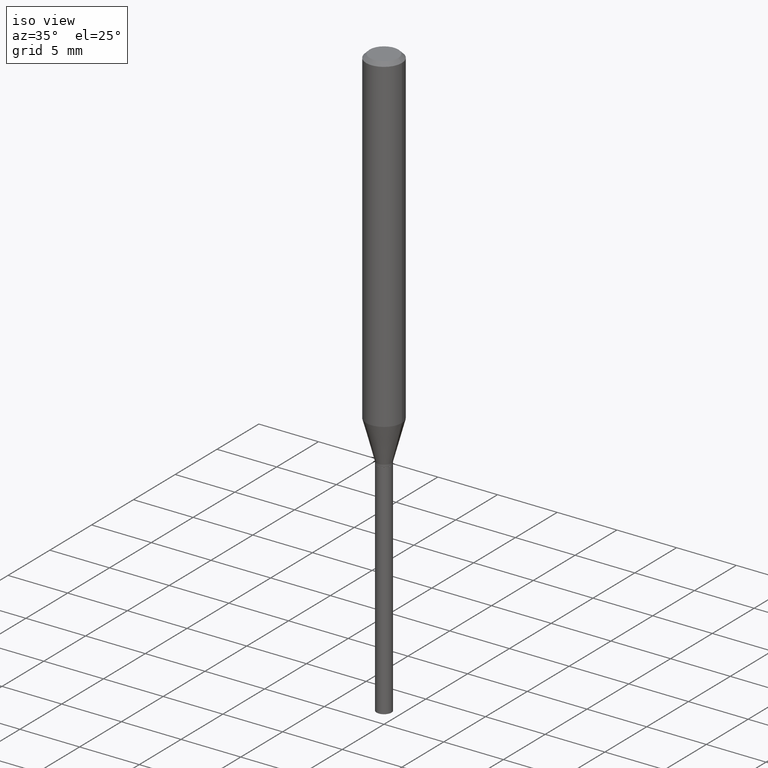
[diagram: clean part render]
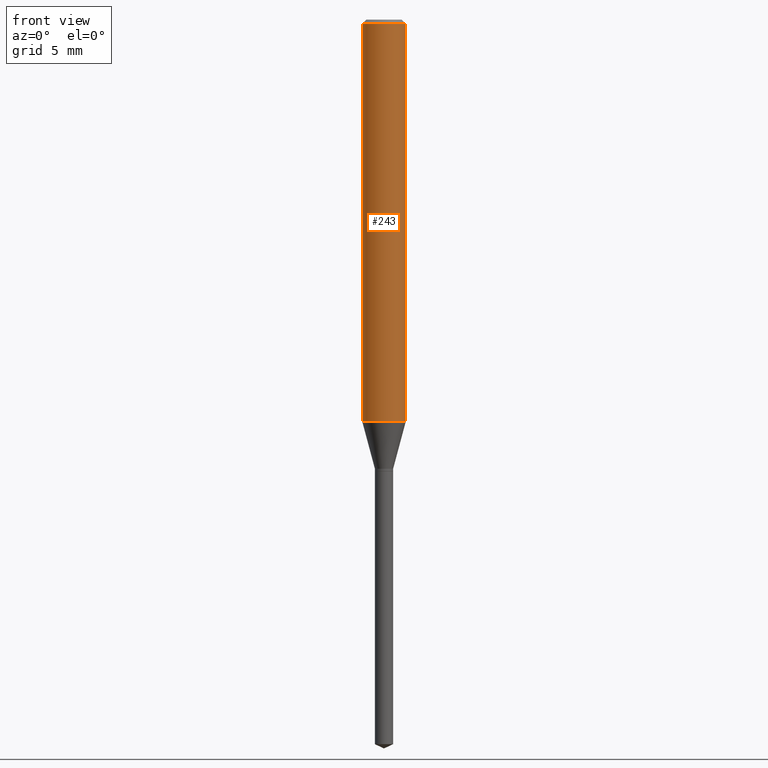
[diagram: tour spotlight — one face highlighted and labeled with its STEP entity id]
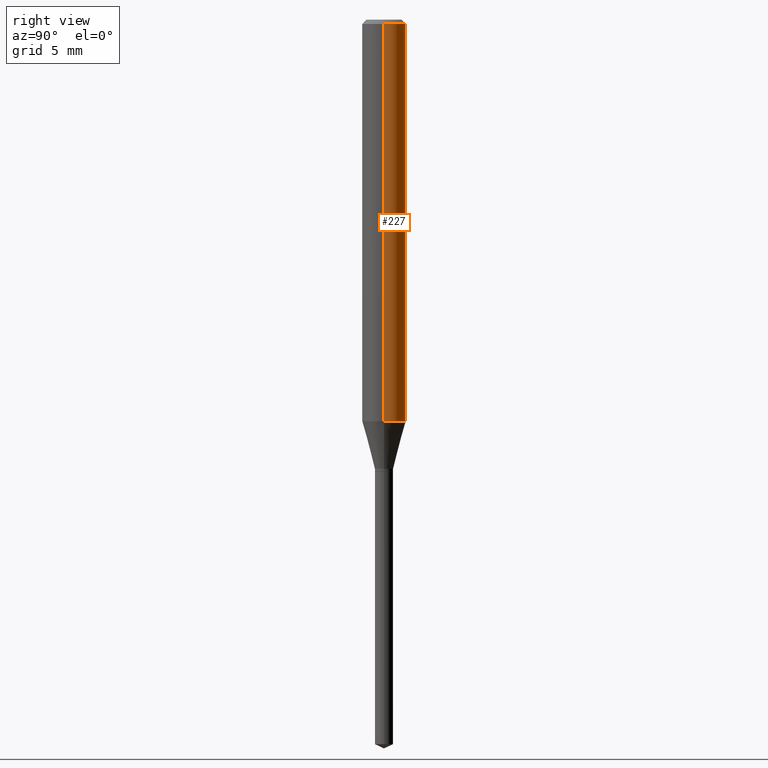
[diagram: tour spotlight — one face highlighted and labeled with its STEP entity id]
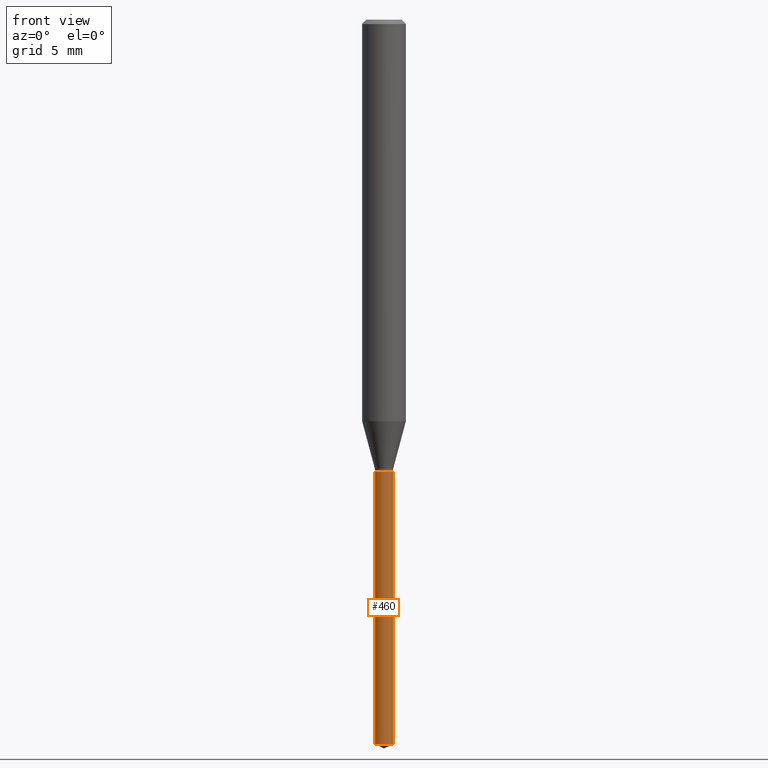
[diagram: tour spotlight — one face highlighted and labeled with its STEP entity id]
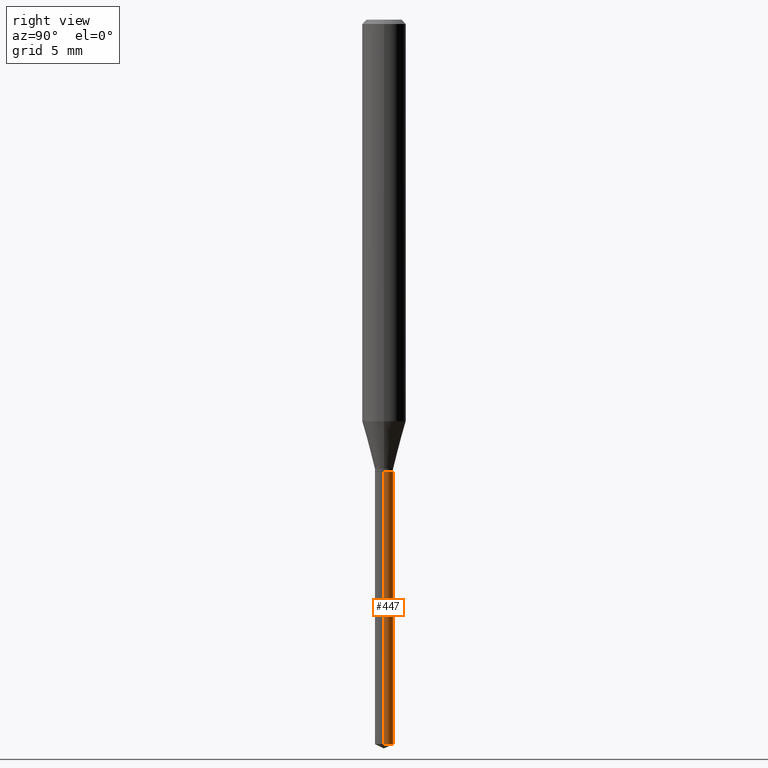
[diagram: tour spotlight — one face highlighted and labeled with its STEP entity id]
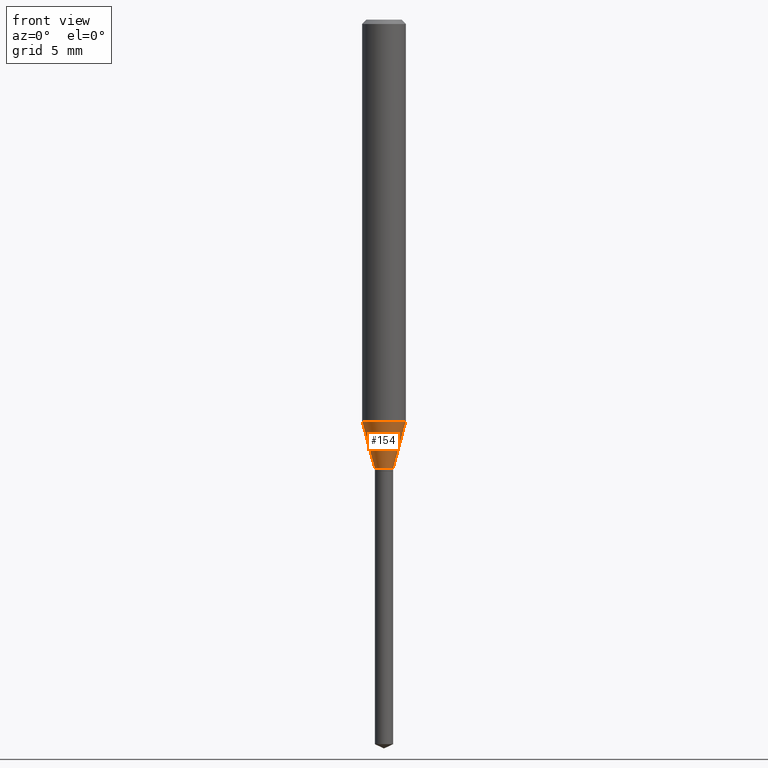
[diagram: tour spotlight — one face highlighted and labeled with its STEP entity id]
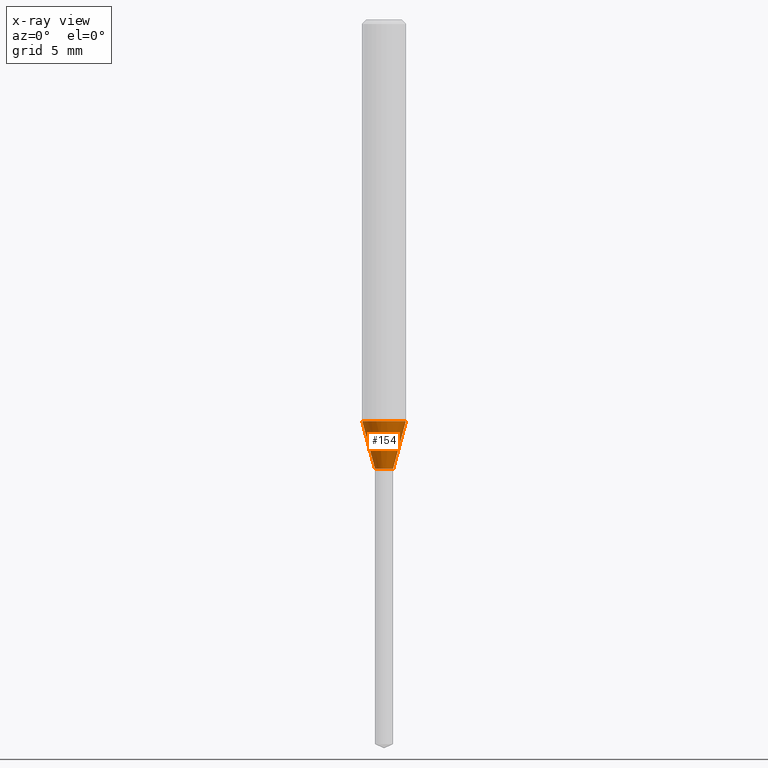
[diagram: x-ray of the same camera — body ghosted, this tour face saturated]
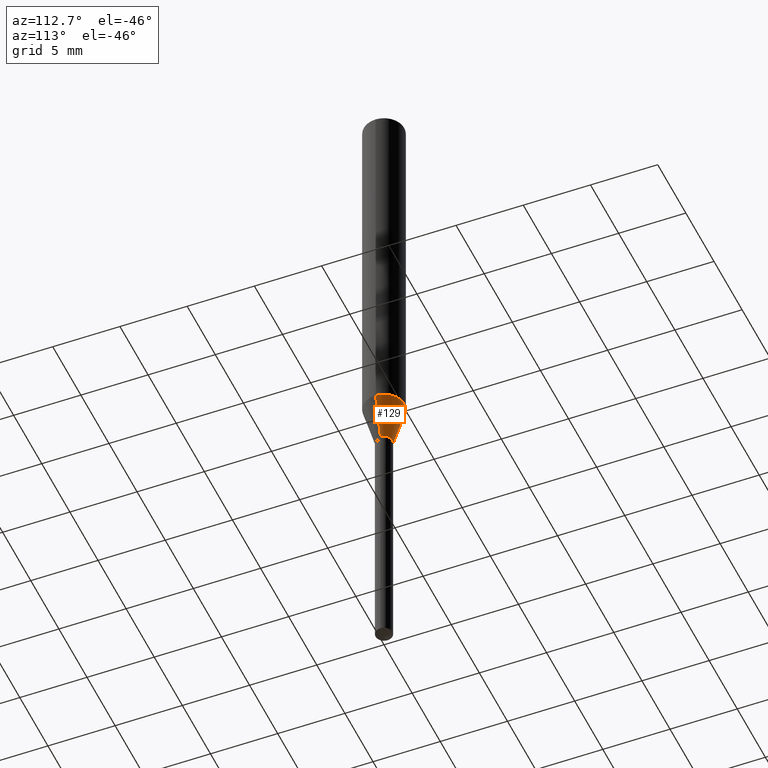
[diagram: tour spotlight — one face highlighted and labeled with its STEP entity id]
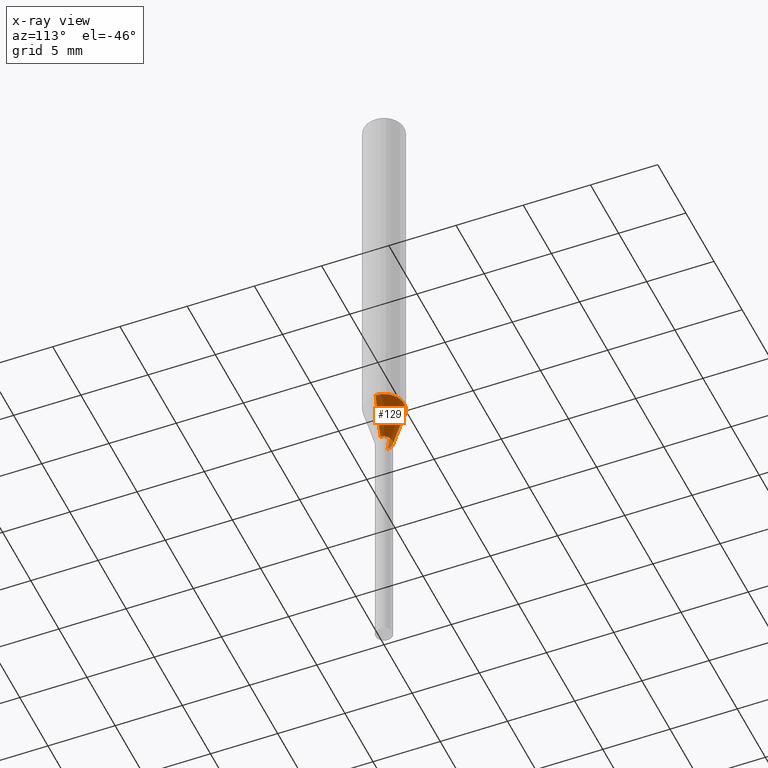
[diagram: x-ray of the same camera — body ghosted, this tour face saturated]
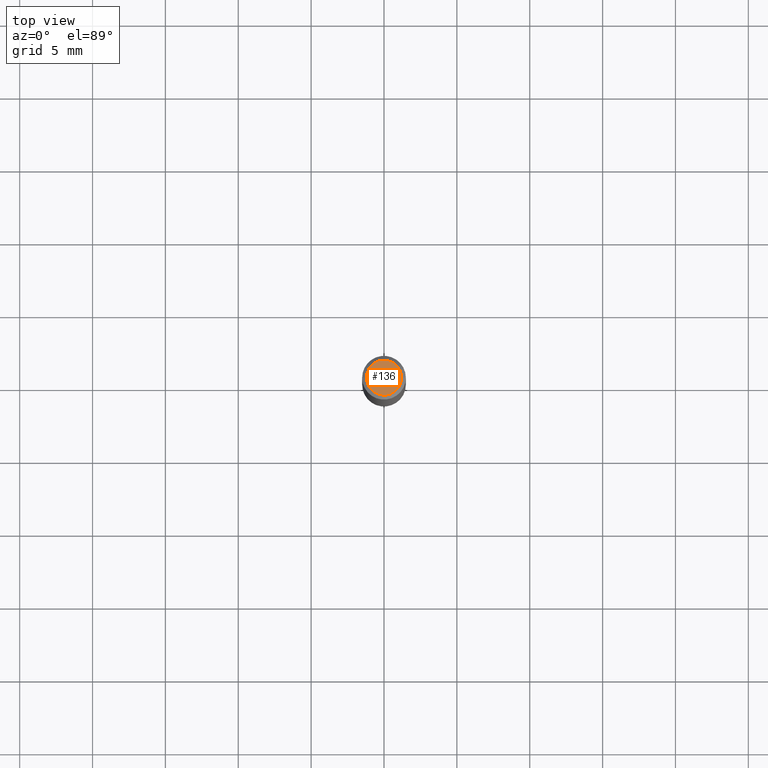
[diagram: tour spotlight — one face highlighted and labeled with its STEP entity id]
A machine part: a face-by-face anatomy tour. The part has 17 B-rep faces; the first image is the clean iso view, then the 7 largest visible faces are spotlighted one at a time (largest first), each with its STEP entity span.

Face 1 — front view, entity #243. In plain terms, the highlighted cylindrical surface (edge-blend (fillet) strip) has radius 1.4999 mm, axis along (-0, 0, 1).
Definition (entity closure, byte-faithful):
#22 = VECTOR ( 'NONE', #484, 39.37007874015748143 ) ;
#27 = CYLINDRICAL_SURFACE ( 'NONE', #352, 0.05905000000000006771 ) ;
#30 = CARTESIAN_POINT ( 'NONE',  ( 0.000000000000000000, 0.000000000000000000, 0.000000000000000000 ) ) ;
#50 = EDGE_CURVE ( 'NONE', #77, #133, #62, .T. ) ;
#57 = CARTESIAN_POINT ( 'NONE',  ( -0.05905000000000000526, -1.495224193701643913E-15, -0.01181000000000007738 ) ) ;
#60 = LINE ( 'NONE', #395, #437 ) ;
#62 = CIRCLE ( 'NONE', #457, 0.05905000000000013710 ) ;
#65 = EDGE_LOOP ( 'NONE', ( #296, #119, #446, #175 ) ) ;
#73 = VERTEX_POINT ( 'NONE', #423 ) ;
#76 = DIRECTION ( 'NONE',  ( -2.445468806185136597E-29, 3.491481338843145583E-15, 1.000000000000000000 ) ) ;
#77 = VERTEX_POINT ( 'NONE', #314 ) ;
#81 = EDGE_CURVE ( 'NONE', #77, #117, #60, .T. ) ;
#95 = DIRECTION ( 'NONE',  ( 1.000000000000000000, -6.982962677686264344E-15, 0.000000000000000000 ) ) ;
#117 = VERTEX_POINT ( 'NONE', #57 ) ;
#119 = ORIENTED_EDGE ( 'NONE', *, *, #50, .T. ) ;
#133 = VERTEX_POINT ( 'NONE', #461 ) ;
#175 = ORIENTED_EDGE ( 'NONE', *, *, #288, .F. ) ;
#194 = AXIS2_PLACEMENT_3D ( 'NONE', #262, #481, #264 ) ;
#201 = EDGE_CURVE ( 'NONE', #133, #73, #224, .T. ) ;
#214 = CARTESIAN_POINT ( 'NONE',  ( 2.653409096639165019E-29, -3.788364963724230266E-15, -1.085030849679252007 ) ) ;
#224 = LINE ( 'NONE', #413, #22 ) ;
#243 = ADVANCED_FACE ( 'NONE', ( #295 ), #27, .T. ) ;
#257 = DIRECTION ( 'NONE',  ( -2.445468806185136597E-29, 3.491481338843145583E-15, 1.000000000000000000 ) ) ;
#258 = CIRCLE ( 'NONE', #194, 0.05905000000000000526 ) ;
#262 = CARTESIAN_POINT ( 'NONE',  ( 2.888098660104665518E-31, -4.123439461173782112E-17, -0.01181000000000007738 ) ) ;
#264 = DIRECTION ( 'NONE',  ( 1.000000000000000000, -6.982962677686267499E-15, 0.000000000000000000 ) ) ;
#288 = EDGE_CURVE ( 'NONE', #117, #73, #258, .T. ) ;
#295 = FACE_OUTER_BOUND ( 'NONE', #65, .T. ) ;
#296 = ORIENTED_EDGE ( 'NONE', *, *, #81, .F. ) ;
#314 = CARTESIAN_POINT ( 'NONE',  ( -0.05905000000000013710, -3.368789478257890773E-15, -1.085030849679252007 ) ) ;
#352 = AXIS2_PLACEMENT_3D ( 'NONE', #30, #76, #406 ) ;
#395 = CARTESIAN_POINT ( 'NONE',  ( -0.05905000000000006771, 4.195754854663396409E-16, -2.904631170795525045E-30 ) ) ;
#406 = DIRECTION ( 'NONE',  ( 1.000000000000000000, -6.982962677686266711E-15, 4.876176775795936353E-29 ) ) ;
#413 = CARTESIAN_POINT ( 'NONE',  ( 0.05905000000000006771, -4.123439461173745257E-16, 2.879382386107503723E-30 ) ) ;
#423 = CARTESIAN_POINT ( 'NONE',  ( 0.05905000000000000526, -4.535783407291119586E-16, -0.01181000000000007738 ) ) ;
#436 = DIRECTION ( 'NONE',  ( -2.445468806185136877E-29, 3.491481338843145188E-15, 1.000000000000000000 ) ) ;
#437 = VECTOR ( 'NONE', #436, 39.37007874015748143 ) ;
#446 = ORIENTED_EDGE ( 'NONE', *, *, #201, .T. ) ;
#457 = AXIS2_PLACEMENT_3D ( 'NONE', #214, #257, #95 ) ;
#461 = CARTESIAN_POINT ( 'NONE',  ( 0.05905000000000013710, -4.200708909841605975E-15, -1.085030849679252007 ) ) ;
#481 = DIRECTION ( 'NONE',  ( -2.445468806185136597E-29, 3.491481338843145583E-15, 1.000000000000000000 ) ) ;
#484 = DIRECTION ( 'NONE',  ( -2.445468806185136877E-29, 3.491481338843145188E-15, 1.000000000000000000 ) ) ;

Face 2 — right view, entity #227. In plain terms, the highlighted cylindrical surface (edge-blend (fillet) strip) has radius 1.4999 mm, axis along (-0, 0, 1).
Definition (entity closure, byte-faithful):
#22 = VECTOR ( 'NONE', #484, 39.37007874015748143 ) ;
#57 = CARTESIAN_POINT ( 'NONE',  ( -0.05905000000000000526, -1.495224193701643913E-15, -0.01181000000000007738 ) ) ;
#60 = LINE ( 'NONE', #395, #437 ) ;
#73 = VERTEX_POINT ( 'NONE', #423 ) ;
#77 = VERTEX_POINT ( 'NONE', #314 ) ;
#81 = EDGE_CURVE ( 'NONE', #77, #117, #60, .T. ) ;
#103 = CIRCLE ( 'NONE', #400, 0.05905000000000013710 ) ;
#107 = DIRECTION ( 'NONE',  ( -2.445468806185136597E-29, 3.491481338843145583E-15, 1.000000000000000000 ) ) ;
#108 = EDGE_LOOP ( 'NONE', ( #172, #451, #396, #417 ) ) ;
#117 = VERTEX_POINT ( 'NONE', #57 ) ;
#133 = VERTEX_POINT ( 'NONE', #461 ) ;
#147 = CARTESIAN_POINT ( 'NONE',  ( 2.653409096639165019E-29, -3.788364963724230266E-15, -1.085030849679252007 ) ) ;
#171 = CYLINDRICAL_SURFACE ( 'NONE', #369, 0.05905000000000006771 ) ;
#172 = ORIENTED_EDGE ( 'NONE', *, *, #210, .T. ) ;
#201 = EDGE_CURVE ( 'NONE', #133, #73, #224, .T. ) ;
#210 = EDGE_CURVE ( 'NONE', #133, #77, #103, .T. ) ;
#224 = LINE ( 'NONE', #413, #22 ) ;
#227 = ADVANCED_FACE ( 'NONE', ( #403 ), #171, .T. ) ;
#261 = EDGE_CURVE ( 'NONE', #73, #117, #408, .T. ) ;
#268 = CARTESIAN_POINT ( 'NONE',  ( 0.000000000000000000, 0.000000000000000000, 0.000000000000000000 ) ) ;
#314 = CARTESIAN_POINT ( 'NONE',  ( -0.05905000000000013710, -3.368789478257890773E-15, -1.085030849679252007 ) ) ;
#339 = AXIS2_PLACEMENT_3D ( 'NONE', #442, #107, #366 ) ;
#366 = DIRECTION ( 'NONE',  ( 1.000000000000000000, -6.982962677686267499E-15, 0.000000000000000000 ) ) ;
#369 = AXIS2_PLACEMENT_3D ( 'NONE', #268, #440, #404 ) ;
#395 = CARTESIAN_POINT ( 'NONE',  ( -0.05905000000000006771, 4.195754854663396409E-16, -2.904631170795525045E-30 ) ) ;
#396 = ORIENTED_EDGE ( 'NONE', *, *, #261, .F. ) ;
#400 = AXIS2_PLACEMENT_3D ( 'NONE', #147, #476, #479 ) ;
#403 = FACE_OUTER_BOUND ( 'NONE', #108, .T. ) ;
#404 = DIRECTION ( 'NONE',  ( 1.000000000000000000, -6.982962677686266711E-15, 4.876176775795936353E-29 ) ) ;
#408 = CIRCLE ( 'NONE', #339, 0.05905000000000000526 ) ;
#413 = CARTESIAN_POINT ( 'NONE',  ( 0.05905000000000006771, -4.123439461173745257E-16, 2.879382386107503723E-30 ) ) ;
#417 = ORIENTED_EDGE ( 'NONE', *, *, #201, .F. ) ;
#423 = CARTESIAN_POINT ( 'NONE',  ( 0.05905000000000000526, -4.535783407291119586E-16, -0.01181000000000007738 ) ) ;
#436 = DIRECTION ( 'NONE',  ( -2.445468806185136877E-29, 3.491481338843145188E-15, 1.000000000000000000 ) ) ;
#437 = VECTOR ( 'NONE', #436, 39.37007874015748143 ) ;
#440 = DIRECTION ( 'NONE',  ( -2.445468806185136597E-29, 3.491481338843145583E-15, 1.000000000000000000 ) ) ;
#442 = CARTESIAN_POINT ( 'NONE',  ( 2.888098660104665518E-31, -4.123439461173782112E-17, -0.01181000000000007738 ) ) ;
#451 = ORIENTED_EDGE ( 'NONE', *, *, #81, .T. ) ;
#461 = CARTESIAN_POINT ( 'NONE',  ( 0.05905000000000013710, -4.200708909841605975E-15, -1.085030849679252007 ) ) ;
#476 = DIRECTION ( 'NONE',  ( -2.445468806185136597E-29, 3.491481338843145583E-15, 1.000000000000000000 ) ) ;
#479 = DIRECTION ( 'NONE',  ( 1.000000000000000000, -6.982962677686264344E-15, 0.000000000000000000 ) ) ;
#484 = DIRECTION ( 'NONE',  ( -2.445468806185136877E-29, 3.491481338843145188E-15, 1.000000000000000000 ) ) ;

Face 3 — front view, entity #460. In plain terms, the highlighted cylindrical surface (edge-blend (fillet) strip) has radius 0.6248 mm, axis along (-0, 0, 1).
Definition (entity closure, byte-faithful):
#7 = LINE ( 'NONE', #452, #308 ) ;
#29 = AXIS2_PLACEMENT_3D ( 'NONE', #44, #280, #343 ) ;
#39 = VECTOR ( 'NONE', #382, 39.37007874015748143 ) ;
#44 = CARTESIAN_POINT ( 'NONE',  ( 2.985917412352052273E-29, -4.263098714727481320E-15, -1.221000000000000085 ) ) ;
#45 = VERTEX_POINT ( 'NONE', #357 ) ;
#46 = FACE_OUTER_BOUND ( 'NONE', #115, .T. ) ;
#63 = AXIS2_PLACEMENT_3D ( 'NONE', #489, #150, #420 ) ;
#79 = DIRECTION ( 'NONE',  ( -2.445468806185136877E-29, 3.491481338843145188E-15, 1.000000000000000000 ) ) ;
#82 = LINE ( 'NONE', #236, #39 ) ;
#88 = AXIS2_PLACEMENT_3D ( 'NONE', #326, #105, #143 ) ;
#105 = DIRECTION ( 'NONE',  ( -2.445468806185136597E-29, 3.491481338843145583E-15, 1.000000000000000000 ) ) ;
#115 = EDGE_LOOP ( 'NONE', ( #235, #375, #256, #370 ) ) ;
#137 = CARTESIAN_POINT ( 'NONE',  ( 0.02460000000000000034, -4.434879596598563582E-15, -1.221000000000000085 ) ) ;
#142 = CARTESIAN_POINT ( 'NONE',  ( -0.02460000000000000034, -5.374093537272557476E-15, -1.221000000000000085 ) ) ;
#143 = DIRECTION ( 'NONE',  ( 1.000000000000000000, -6.982962677686261977E-15, 0.000000000000000000 ) ) ;
#150 = DIRECTION ( 'NONE',  ( -2.445468806185136597E-29, 3.491481338843145583E-15, 1.000000000000000000 ) ) ;
#179 = VERTEX_POINT ( 'NONE', #463 ) ;
#218 = VERTEX_POINT ( 'NONE', #137 ) ;
#222 = CIRCLE ( 'NONE', #88, 0.02460000000000000034 ) ;
#231 = VERTEX_POINT ( 'NONE', #142 ) ;
#235 = ORIENTED_EDGE ( 'NONE', *, *, #391, .F. ) ;
#236 = CARTESIAN_POINT ( 'NONE',  ( 0.02460000000000000034, -4.434879596598563582E-15, -1.221000000000000085 ) ) ;
#256 = ORIENTED_EDGE ( 'NONE', *, *, #480, .T. ) ;
#267 = EDGE_CURVE ( 'NONE', #45, #179, #222, .T. ) ;
#280 = DIRECTION ( 'NONE',  ( -2.445468806185136597E-29, 3.491481338843145583E-15, 1.000000000000000000 ) ) ;
#308 = VECTOR ( 'NONE', #79, 39.37007874015748143 ) ;
#312 = CYLINDRICAL_SURFACE ( 'NONE', #63, 0.02460000000000000034 ) ;
#326 = CARTESIAN_POINT ( 'NONE',  ( 4.787075694908793597E-29, -6.834675385811602288E-15, -1.957528831609387288 ) ) ;
#331 = CIRCLE ( 'NONE', #29, 0.02460000000000000034 ) ;
#343 = DIRECTION ( 'NONE',  ( 1.000000000000000000, -6.982962677686261977E-15, 0.000000000000000000 ) ) ;
#357 = CARTESIAN_POINT ( 'NONE',  ( -0.02460000000000000034, -6.659881872814617171E-15, -1.957528831609387288 ) ) ;
#370 = ORIENTED_EDGE ( 'NONE', *, *, #441, .F. ) ;
#375 = ORIENTED_EDGE ( 'NONE', *, *, #267, .T. ) ;
#382 = DIRECTION ( 'NONE',  ( -2.445468806185136877E-29, 3.491481338843145188E-15, 1.000000000000000000 ) ) ;
#391 = EDGE_CURVE ( 'NONE', #45, #231, #7, .T. ) ;
#420 = DIRECTION ( 'NONE',  ( 1.000000000000000000, -6.982962677686281699E-15, 0.000000000000000000 ) ) ;
#441 = EDGE_CURVE ( 'NONE', #231, #218, #331, .T. ) ;
#452 = CARTESIAN_POINT ( 'NONE',  ( -0.02460000000000000034, -4.088305201730496204E-15, -1.221000000000000085 ) ) ;
#460 = ADVANCED_FACE ( 'NONE', ( #46 ), #312, .T. ) ;
#463 = CARTESIAN_POINT ( 'NONE',  ( 0.02460000000000000034, -7.006456267682684550E-15, -1.957528831609387288 ) ) ;
#480 = EDGE_CURVE ( 'NONE', #179, #218, #82, .T. ) ;
#489 = CARTESIAN_POINT ( 'NONE',  ( 2.985917412352051713E-29, -4.263098714727481320E-15, -1.221000000000000085 ) ) ;

Face 4 — right view, entity #447. In plain terms, the highlighted cylindrical surface (edge-blend (fillet) strip) has radius 0.6248 mm, axis along (-0, 0, 1).
Definition (entity closure, byte-faithful):
#7 = LINE ( 'NONE', #452, #308 ) ;
#11 = EDGE_CURVE ( 'NONE', #179, #45, #183, .T. ) ;
#18 = DIRECTION ( 'NONE',  ( -2.445468806185136597E-29, 3.491481338843145583E-15, 1.000000000000000000 ) ) ;
#39 = VECTOR ( 'NONE', #382, 39.37007874015748143 ) ;
#45 = VERTEX_POINT ( 'NONE', #357 ) ;
#48 = AXIS2_PLACEMENT_3D ( 'NONE', #198, #242, #152 ) ;
#79 = DIRECTION ( 'NONE',  ( -2.445468806185136877E-29, 3.491481338843145188E-15, 1.000000000000000000 ) ) ;
#82 = LINE ( 'NONE', #236, #39 ) ;
#86 = CYLINDRICAL_SURFACE ( 'NONE', #48, 0.02460000000000000034 ) ;
#89 = FACE_OUTER_BOUND ( 'NONE', #263, .T. ) ;
#97 = CARTESIAN_POINT ( 'NONE',  ( 2.985917412352052273E-29, -4.263098714727481320E-15, -1.221000000000000085 ) ) ;
#99 = ORIENTED_EDGE ( 'NONE', *, *, #391, .T. ) ;
#116 = EDGE_CURVE ( 'NONE', #218, #231, #445, .T. ) ;
#128 = CARTESIAN_POINT ( 'NONE',  ( 4.787075694908793597E-29, -6.834675385811602288E-15, -1.957528831609387288 ) ) ;
#132 = DIRECTION ( 'NONE',  ( -2.445468806185136597E-29, 3.491481338843145583E-15, 1.000000000000000000 ) ) ;
#137 = CARTESIAN_POINT ( 'NONE',  ( 0.02460000000000000034, -4.434879596598563582E-15, -1.221000000000000085 ) ) ;
#142 = CARTESIAN_POINT ( 'NONE',  ( -0.02460000000000000034, -5.374093537272557476E-15, -1.221000000000000085 ) ) ;
#144 = ORIENTED_EDGE ( 'NONE', *, *, #480, .F. ) ;
#152 = DIRECTION ( 'NONE',  ( 1.000000000000000000, -6.982962677686281699E-15, 0.000000000000000000 ) ) ;
#161 = DIRECTION ( 'NONE',  ( 1.000000000000000000, -6.982962677686261977E-15, 0.000000000000000000 ) ) ;
#179 = VERTEX_POINT ( 'NONE', #463 ) ;
#183 = CIRCLE ( 'NONE', #192, 0.02460000000000000034 ) ;
#192 = AXIS2_PLACEMENT_3D ( 'NONE', #128, #132, #431 ) ;
#198 = CARTESIAN_POINT ( 'NONE',  ( 2.985917412352051713E-29, -4.263098714727481320E-15, -1.221000000000000085 ) ) ;
#218 = VERTEX_POINT ( 'NONE', #137 ) ;
#231 = VERTEX_POINT ( 'NONE', #142 ) ;
#236 = CARTESIAN_POINT ( 'NONE',  ( 0.02460000000000000034, -4.434879596598563582E-15, -1.221000000000000085 ) ) ;
#239 = AXIS2_PLACEMENT_3D ( 'NONE', #97, #18, #161 ) ;
#242 = DIRECTION ( 'NONE',  ( -2.445468806185136597E-29, 3.491481338843145583E-15, 1.000000000000000000 ) ) ;
#263 = EDGE_LOOP ( 'NONE', ( #358, #99, #443, #144 ) ) ;
#308 = VECTOR ( 'NONE', #79, 39.37007874015748143 ) ;
#357 = CARTESIAN_POINT ( 'NONE',  ( -0.02460000000000000034, -6.659881872814617171E-15, -1.957528831609387288 ) ) ;
#358 = ORIENTED_EDGE ( 'NONE', *, *, #11, .T. ) ;
#382 = DIRECTION ( 'NONE',  ( -2.445468806185136877E-29, 3.491481338843145188E-15, 1.000000000000000000 ) ) ;
#391 = EDGE_CURVE ( 'NONE', #45, #231, #7, .T. ) ;
#431 = DIRECTION ( 'NONE',  ( 1.000000000000000000, -6.982962677686261977E-15, 0.000000000000000000 ) ) ;
#443 = ORIENTED_EDGE ( 'NONE', *, *, #116, .F. ) ;
#445 = CIRCLE ( 'NONE', #239, 0.02460000000000000034 ) ;
#447 = ADVANCED_FACE ( 'NONE', ( #89 ), #86, .T. ) ;
#452 = CARTESIAN_POINT ( 'NONE',  ( -0.02460000000000000034, -4.088305201730496204E-15, -1.221000000000000085 ) ) ;
#463 = CARTESIAN_POINT ( 'NONE',  ( 0.02460000000000000034, -7.006456267682684550E-15, -1.957528831609387288 ) ) ;
#480 = EDGE_CURVE ( 'NONE', #179, #218, #82, .T. ) ;

Face 5 — front view, entity #154. An x-ray twin of the same camera follows (body ghosted, this face saturated) — the face is partly hidden behind the body. In plain terms, the highlighted conical surface has half-angle 15 deg.
Definition (entity closure, byte-faithful):
#5 = VECTOR ( 'NONE', #180, 39.37007874015747433 ) ;
#28 = VECTOR ( 'NONE', #204, 39.37007874015747433 ) ;
#33 = CARTESIAN_POINT ( 'NONE',  ( 0.02460000000000001422, -4.409042634691123752E-15, -1.213600000000000012 ) ) ;
#50 = EDGE_CURVE ( 'NONE', #77, #133, #62, .T. ) ;
#62 = CIRCLE ( 'NONE', #457, 0.05905000000000013710 ) ;
#69 = EDGE_CURVE ( 'NONE', #181, #77, #434, .T. ) ;
#74 = LINE ( 'NONE', #33, #5 ) ;
#77 = VERTEX_POINT ( 'NONE', #314 ) ;
#95 = DIRECTION ( 'NONE',  ( 1.000000000000000000, -6.982962677686264344E-15, 0.000000000000000000 ) ) ;
#102 = EDGE_CURVE ( 'NONE', #181, #365, #330, .T. ) ;
#133 = VERTEX_POINT ( 'NONE', #461 ) ;
#154 = ADVANCED_FACE ( 'NONE', ( #212 ), #360, .T. ) ;
#169 = ORIENTED_EDGE ( 'NONE', *, *, #50, .F. ) ;
#180 = DIRECTION ( 'NONE',  ( 0.2588190451025213501, 1.565188264969621968E-15, 0.9659258262890682012 ) ) ;
#181 = VERTEX_POINT ( 'NONE', #473 ) ;
#204 = DIRECTION ( 'NONE',  ( -0.2588190451025213501, 5.211531920934551042E-15, 0.9659258262890682012 ) ) ;
#207 = DIRECTION ( 'NONE',  ( -2.445468806185136597E-29, 3.491481338843145583E-15, 1.000000000000000000 ) ) ;
#212 = FACE_OUTER_BOUND ( 'NONE', #276, .T. ) ;
#214 = CARTESIAN_POINT ( 'NONE',  ( 2.653409096639165019E-29, -3.788364963724230266E-15, -1.085030849679252007 ) ) ;
#257 = DIRECTION ( 'NONE',  ( -2.445468806185136597E-29, 3.491481338843145583E-15, 1.000000000000000000 ) ) ;
#276 = EDGE_LOOP ( 'NONE', ( #469, #304, #454, #169 ) ) ;
#304 = ORIENTED_EDGE ( 'NONE', *, *, #102, .T. ) ;
#314 = CARTESIAN_POINT ( 'NONE',  ( -0.05905000000000013710, -3.368789478257890773E-15, -1.085030849679252007 ) ) ;
#330 = CIRCLE ( 'NONE', #427, 0.02460000000000001422 ) ;
#354 = DIRECTION ( 'NONE',  ( -2.445468806185136597E-29, 3.491481338843145583E-15, 1.000000000000000000 ) ) ;
#360 = CONICAL_SURFACE ( 'NONE', #416, 0.02460000000000001422, 0.2617993877991500740 ) ;
#361 = CARTESIAN_POINT ( 'NONE',  ( 2.967820943186281838E-29, -4.237261752820041489E-15, -1.213600000000000012 ) ) ;
#365 = VERTEX_POINT ( 'NONE', #411 ) ;
#372 = EDGE_CURVE ( 'NONE', #365, #133, #74, .T. ) ;
#390 = DIRECTION ( 'NONE',  ( 1.000000000000000000, -6.982962677686277755E-15, 0.000000000000000000 ) ) ;
#393 = CARTESIAN_POINT ( 'NONE',  ( -0.02460000000000001422, -4.062468239823057162E-15, -1.213600000000000012 ) ) ;
#401 = CARTESIAN_POINT ( 'NONE',  ( 2.967820943186281838E-29, -4.237261752820041489E-15, -1.213600000000000012 ) ) ;
#411 = CARTESIAN_POINT ( 'NONE',  ( 0.02460000000000001422, -4.409042634691123752E-15, -1.213600000000000012 ) ) ;
#416 = AXIS2_PLACEMENT_3D ( 'NONE', #361, #354, #390 ) ;
#427 = AXIS2_PLACEMENT_3D ( 'NONE', #401, #207, #471 ) ;
#434 = LINE ( 'NONE', #393, #28 ) ;
#454 = ORIENTED_EDGE ( 'NONE', *, *, #372, .T. ) ;
#457 = AXIS2_PLACEMENT_3D ( 'NONE', #214, #257, #95 ) ;
#461 = CARTESIAN_POINT ( 'NONE',  ( 0.05905000000000013710, -4.200708909841605975E-15, -1.085030849679252007 ) ) ;
#469 = ORIENTED_EDGE ( 'NONE', *, *, #69, .F. ) ;
#471 = DIRECTION ( 'NONE',  ( 1.000000000000000000, -6.982962677686277755E-15, 0.000000000000000000 ) ) ;
#473 = CARTESIAN_POINT ( 'NONE',  ( -0.02460000000000001422, -4.074513850442065931E-15, -1.213600000000000012 ) ) ;

Face 6 — auxiliary view, entity #129. An x-ray twin of the same camera follows (body ghosted, this face saturated) — the face is partly hidden behind the body. In plain terms, the highlighted conical surface has half-angle 15 deg.
Definition (entity closure, byte-faithful):
#4 = AXIS2_PLACEMENT_3D ( 'NONE', #317, #131, #209 ) ;
#5 = VECTOR ( 'NONE', #180, 39.37007874015747433 ) ;
#6 = EDGE_LOOP ( 'NONE', ( #225, #253, #186, #478 ) ) ;
#24 = FACE_OUTER_BOUND ( 'NONE', #6, .T. ) ;
#28 = VECTOR ( 'NONE', #204, 39.37007874015747433 ) ;
#33 = CARTESIAN_POINT ( 'NONE',  ( 0.02460000000000001422, -4.409042634691123752E-15, -1.213600000000000012 ) ) ;
#69 = EDGE_CURVE ( 'NONE', #181, #77, #434, .T. ) ;
#74 = LINE ( 'NONE', #33, #5 ) ;
#77 = VERTEX_POINT ( 'NONE', #314 ) ;
#78 = CONICAL_SURFACE ( 'NONE', #4, 0.02460000000000001422, 0.2617993877991500740 ) ;
#103 = CIRCLE ( 'NONE', #400, 0.05905000000000013710 ) ;
#129 = ADVANCED_FACE ( 'NONE', ( #24 ), #78, .T. ) ;
#131 = DIRECTION ( 'NONE',  ( -2.445468806185136597E-29, 3.491481338843145583E-15, 1.000000000000000000 ) ) ;
#133 = VERTEX_POINT ( 'NONE', #461 ) ;
#147 = CARTESIAN_POINT ( 'NONE',  ( 2.653409096639165019E-29, -3.788364963724230266E-15, -1.085030849679252007 ) ) ;
#158 = AXIS2_PLACEMENT_3D ( 'NONE', #487, #278, #421 ) ;
#180 = DIRECTION ( 'NONE',  ( 0.2588190451025213501, 1.565188264969621968E-15, 0.9659258262890682012 ) ) ;
#181 = VERTEX_POINT ( 'NONE', #473 ) ;
#186 = ORIENTED_EDGE ( 'NONE', *, *, #210, .F. ) ;
#204 = DIRECTION ( 'NONE',  ( -0.2588190451025213501, 5.211531920934551042E-15, 0.9659258262890682012 ) ) ;
#209 = DIRECTION ( 'NONE',  ( 1.000000000000000000, -6.982962677686277755E-15, 0.000000000000000000 ) ) ;
#210 = EDGE_CURVE ( 'NONE', #133, #77, #103, .T. ) ;
#225 = ORIENTED_EDGE ( 'NONE', *, *, #424, .T. ) ;
#253 = ORIENTED_EDGE ( 'NONE', *, *, #69, .T. ) ;
#278 = DIRECTION ( 'NONE',  ( -2.445468806185136597E-29, 3.491481338843145583E-15, 1.000000000000000000 ) ) ;
#314 = CARTESIAN_POINT ( 'NONE',  ( -0.05905000000000013710, -3.368789478257890773E-15, -1.085030849679252007 ) ) ;
#317 = CARTESIAN_POINT ( 'NONE',  ( 2.967820943186281838E-29, -4.237261752820041489E-15, -1.213600000000000012 ) ) ;
#365 = VERTEX_POINT ( 'NONE', #411 ) ;
#372 = EDGE_CURVE ( 'NONE', #365, #133, #74, .T. ) ;
#393 = CARTESIAN_POINT ( 'NONE',  ( -0.02460000000000001422, -4.062468239823057162E-15, -1.213600000000000012 ) ) ;
#400 = AXIS2_PLACEMENT_3D ( 'NONE', #147, #476, #479 ) ;
#411 = CARTESIAN_POINT ( 'NONE',  ( 0.02460000000000001422, -4.409042634691123752E-15, -1.213600000000000012 ) ) ;
#421 = DIRECTION ( 'NONE',  ( 1.000000000000000000, -6.982962677686277755E-15, 0.000000000000000000 ) ) ;
#424 = EDGE_CURVE ( 'NONE', #365, #181, #485, .T. ) ;
#434 = LINE ( 'NONE', #393, #28 ) ;
#461 = CARTESIAN_POINT ( 'NONE',  ( 0.05905000000000013710, -4.200708909841605975E-15, -1.085030849679252007 ) ) ;
#473 = CARTESIAN_POINT ( 'NONE',  ( -0.02460000000000001422, -4.074513850442065931E-15, -1.213600000000000012 ) ) ;
#476 = DIRECTION ( 'NONE',  ( -2.445468806185136597E-29, 3.491481338843145583E-15, 1.000000000000000000 ) ) ;
#478 = ORIENTED_EDGE ( 'NONE', *, *, #372, .F. ) ;
#479 = DIRECTION ( 'NONE',  ( 1.000000000000000000, -6.982962677686264344E-15, 0.000000000000000000 ) ) ;
#485 = CIRCLE ( 'NONE', #158, 0.02460000000000001422 ) ;
#487 = CARTESIAN_POINT ( 'NONE',  ( 2.967820943186281838E-29, -4.237261752820041489E-15, -1.213600000000000012 ) ) ;

Face 7 — top view, entity #136. In plain terms, the highlighted planar face has unit normal (0, -0, -1).
Definition (entity closure, byte-faithful):
#13 = AXIS2_PLACEMENT_3D ( 'NONE', #270, #376, #332 ) ;
#25 = CARTESIAN_POINT ( 'NONE',  ( 4.132873053354867254E-48, -5.900647395337818946E-34, -1.690012582823346072E-19 ) ) ;
#61 = VERTEX_POINT ( 'NONE', #464 ) ;
#64 = DIRECTION ( 'NONE',  ( 1.000000000000000000, -6.982962677686266711E-15, 4.876185090822587894E-29 ) ) ;
#87 = AXIS2_PLACEMENT_3D ( 'NONE', #25, #126, #286 ) ;
#93 = DIRECTION ( 'NONE',  ( -2.445468806185136597E-29, 3.491481338843145583E-15, 1.000000000000000000 ) ) ;
#121 = EDGE_CURVE ( 'NONE', #61, #321, #220, .T. ) ;
#126 = DIRECTION ( 'NONE',  ( 2.438088387897960049E-29, -3.491481338843145188E-15, -1.000000000000000000 ) ) ;
#136 = ADVANCED_FACE ( 'NONE', ( #318 ), #398, .F. ) ;
#141 = ORIENTED_EDGE ( 'NONE', *, *, #197, .T. ) ;
#197 = EDGE_CURVE ( 'NONE', #321, #61, #458, .T. ) ;
#220 = CIRCLE ( 'NONE', #232, 0.04724000000000000421 ) ;
#232 = AXIS2_PLACEMENT_3D ( 'NONE', #255, #93, #64 ) ;
#255 = CARTESIAN_POINT ( 'NONE',  ( 8.265746106709734507E-48, -1.180129479067563789E-33, -3.380025165646692144E-19 ) ) ;
#270 = CARTESIAN_POINT ( 'NONE',  ( 8.265746106709734507E-48, -1.180129479067563789E-33, -3.380025165646692144E-19 ) ) ;
#286 = DIRECTION ( 'NONE',  ( -1.000000000000000000, 6.982962677686265922E-15, -4.876176775795935793E-29 ) ) ;
#301 = CARTESIAN_POINT ( 'NONE',  ( -0.04724000000000000421, 3.504923541997677355E-16, -3.380025165670481712E-19 ) ) ;
#318 = FACE_OUTER_BOUND ( 'NONE', #341, .T. ) ;
#321 = VERTEX_POINT ( 'NONE', #301 ) ;
#332 = DIRECTION ( 'NONE',  ( 1.000000000000000000, -6.982962677686266711E-15, 4.876185090822587894E-29 ) ) ;
#341 = EDGE_LOOP ( 'NONE', ( #141, #482 ) ) ;
#376 = DIRECTION ( 'NONE',  ( -2.445468806185136597E-29, 3.491481338843145583E-15, 1.000000000000000000 ) ) ;
#398 = PLANE ( 'NONE',  #87 ) ;
#458 = CIRCLE ( 'NONE', #13, 0.04724000000000000421 ) ;
#464 = CARTESIAN_POINT ( 'NONE',  ( 0.04724000000000000421, -3.852183633974369838E-16, -3.380025165621689721E-19 ) ) ;
#482 = ORIENTED_EDGE ( 'NONE', *, *, #121, .T. ) ;